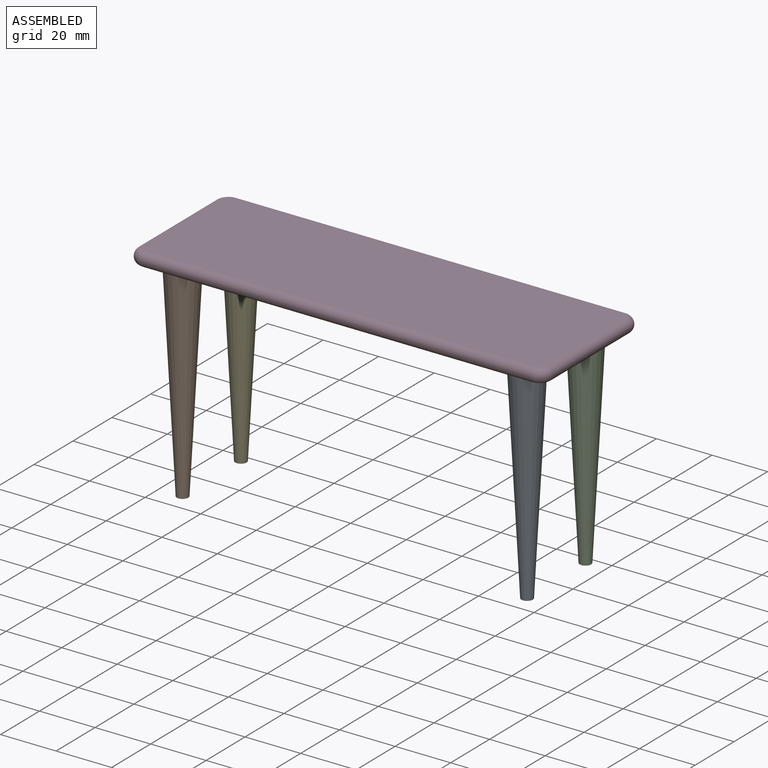
[diagram: assembled view]
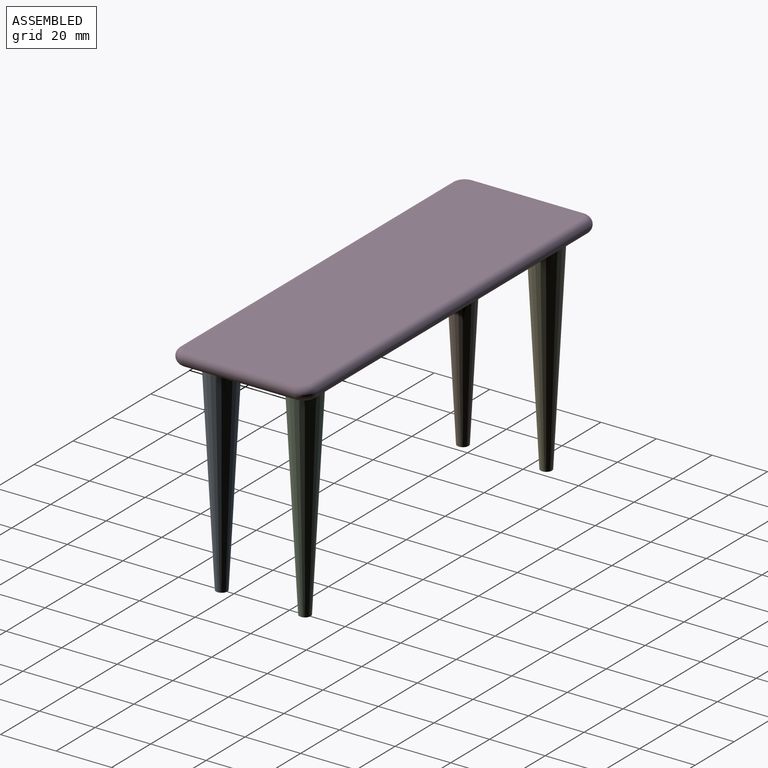
[diagram: assembled view, second angle]
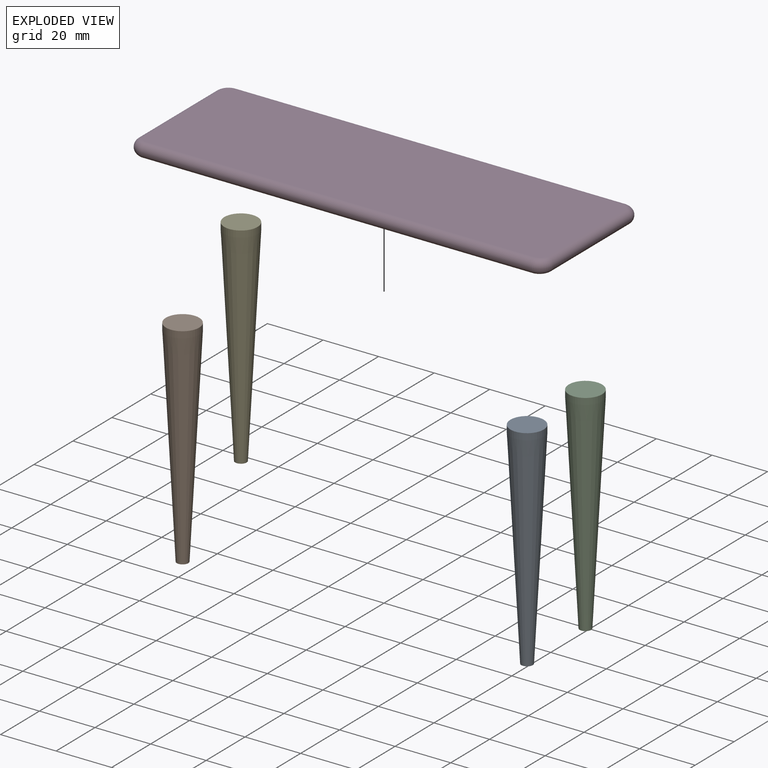
[diagram: exploded view]
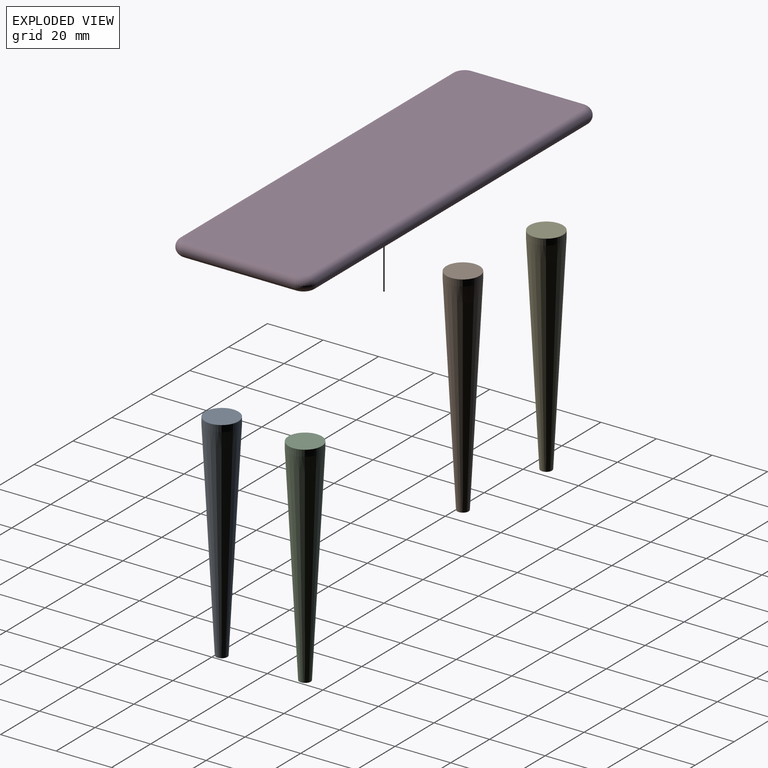
[diagram: exploded view, second angle]
ASSEMBLY  parts=5 mates=4
PART A: 4 faces, bbox 12x12x77.7 mm
  f0: cone r=6mm half-angle=3deg, axis (0,0,1), area 1909.1mm2, adj f1,f2
  f1: plane 4.1x4.1mm, normal (0,0,-1), area 13.2mm2, adj f0
  f2: cylinder r=6mm len=12mm, axis (0,0,-1), area 86.7mm2, adj f0,f3
  f3: plane 12x12mm, normal (0,0,1), area 113.1mm2, adj f2
PART B: same geometry as A
PART C: same geometry as A
PART D: 18 faces, bbox 150.8x50.8x5 mm
  f0: plane 145x45mm, normal (0,0,-1), area 6067.2mm2, adj f2,f4,f6,f8,f10,f11,f12,f13
  f1: plane 145x45mm, normal (0,0,1), area 6519.6mm2, adj f10,f11,f12,f13,f14,f15,f16,f17
  f2: cylinder r=6mm len=12mm, axis (0,0,-1), area 86.7mm2, adj f0,f3
  f3: plane 12x12mm, normal (0,0,-1), area 113.1mm2, adj f2
  f4: cylinder r=6mm len=12mm, axis (0,0,-1), area 86.7mm2, adj f0,f5
  f5: plane 12x12mm, normal (0,0,-1), area 113.1mm2, adj f4
  f6: cylinder r=6mm len=12mm, axis (0,0,-1), area 86.7mm2, adj f0,f7
  f7: plane 12x12mm, normal (0,0,-1), area 113.1mm2, adj f6
  f8: cylinder r=6mm len=12mm, axis (0,0,-1), area 86.7mm2, adj f0,f9
  f9: plane 12x12mm, normal (0,0,-1), area 113.1mm2, adj f8
  f10: torus R=2.5mm, axis (0,0,1), area 50.5mm2, adj f0,f1,f11,f12
  f11: cylinder r=2.5mm len=40mm, axis (0,1,0), area 314.2mm2, adj f0,f1,f10,f13
  f12: cylinder r=2.5mm len=140mm, axis (1,0,0), area 1099.6mm2, adj f0,f1,f10,f14
  f13: torus R=2.5mm, axis (0,0,1), area 50.5mm2, adj f0,f1,f11,f15
  f14: torus R=2.5mm, axis (0,0,1), area 50.5mm2, adj f0,f1,f12,f16
  f15: cylinder r=2.5mm len=140mm, axis (-1,0,0), area 1099.6mm2, adj f0,f1,f13,f17
  f16: cylinder r=2.5mm len=40mm, axis (0,-1,0), area 314.2mm2, adj f0,f1,f14,f17
  f17: torus R=2.5mm, axis (0,0,1), area 50.5mm2, adj f0,f1,f15,f16
PART E: same geometry as A
PLACE A t=(62,-15,0)mm
PLACE B t=(-62,-15,0)mm
PLACE C t=(62,15,0)mm
PLACE D at identity fixed
PLACE E t=(-62,15,0)mm
MATE fastened B.f0 <-> D.f6  axis (0,0,1) through (-62,-15,2.3)mm
MATE fastened C.f0 <-> D.f8  axis (0,0,1) through (62,15,2.3)mm
MATE fastened E.f0 <-> D.f2  axis (0,0,1) through (-62,15,2.3)mm
MATE fastened A.f0 <-> D.f4  axis (0,0,1) through (62,-15,2.3)mm
